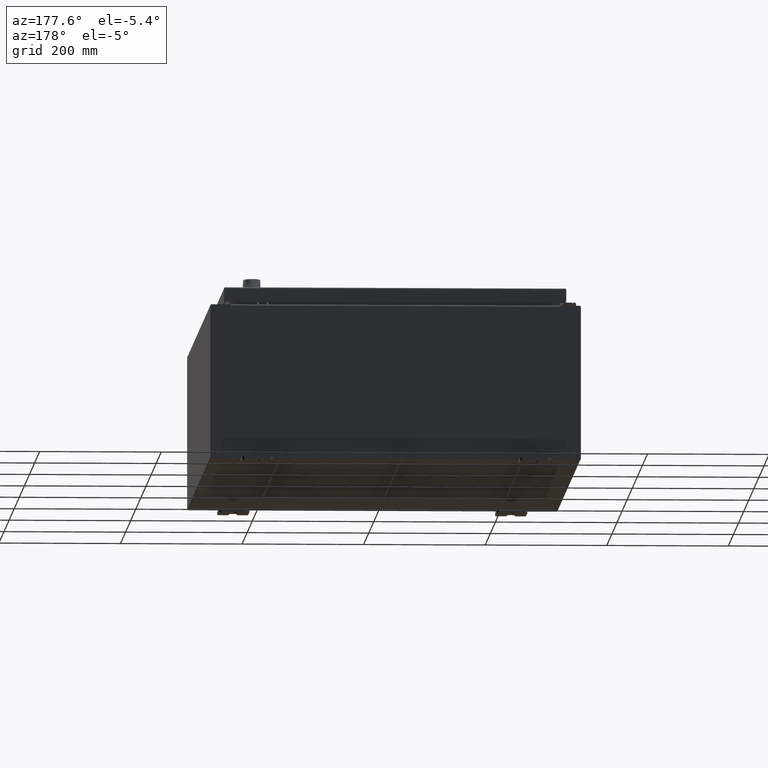
[diagram: clean part render]
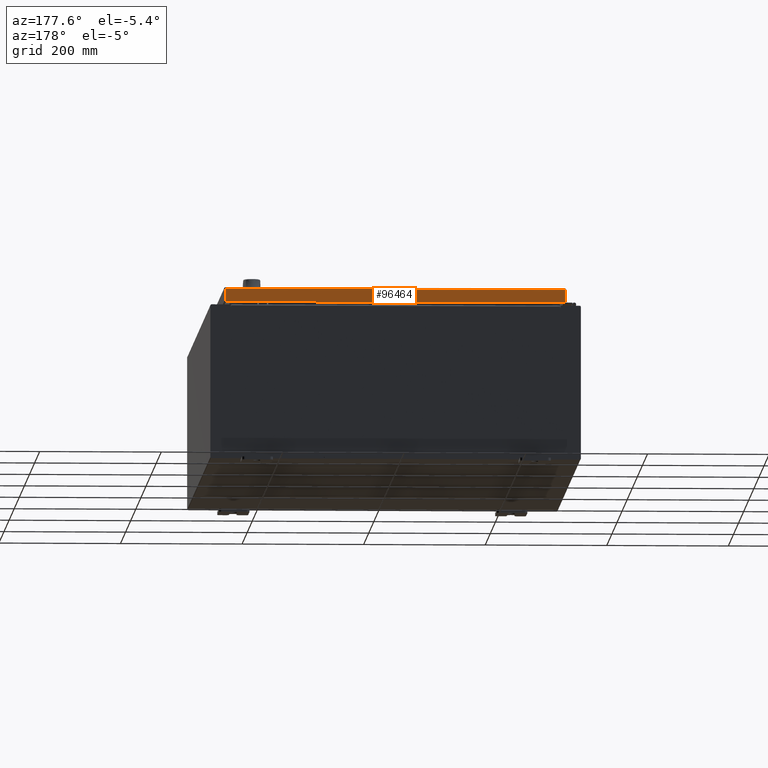
[diagram: same view with one face highlighted and labeled with its STEP entity id]
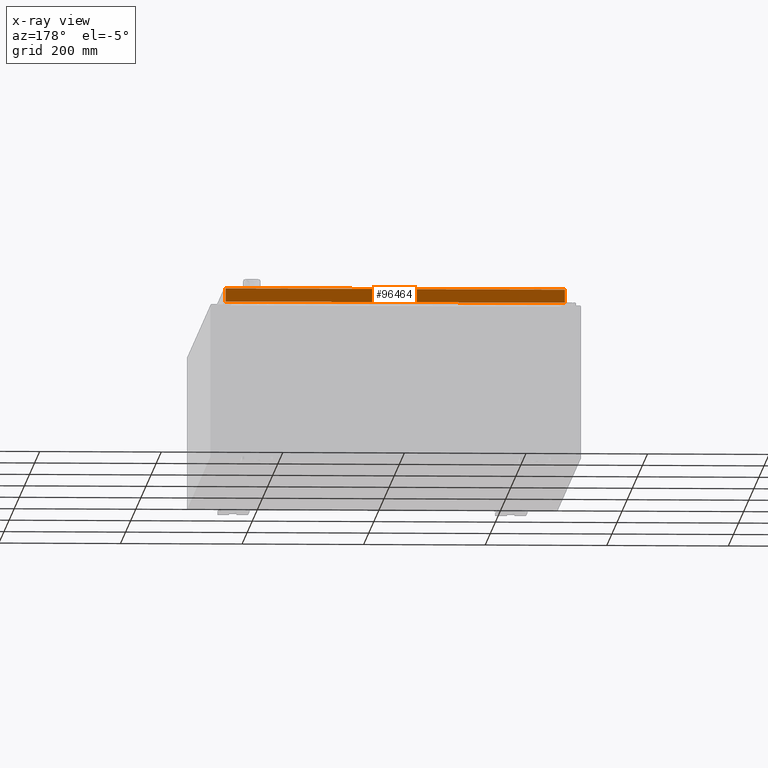
[diagram: x-ray of the same camera — body ghosted, the highlighted face saturated]
A machine part, auxiliary view. The second image highlights one B-rep face of the part: STEP entity #96464.
The next image is the same camera in x-ray: the body ghosted, the highlighted face saturated — about 0% of this face is hidden behind the body in this view.
In plain terms, the highlighted planar face has unit normal (0, -1, -0).
Its self-contained STEP definition (entity closure, byte-faithful):
#1524 = VERTEX_POINT ( 'NONE', #23886 ) ;
#4689 = VECTOR ( 'NONE', #33058, 39.37007874015748100 ) ;
#20199 = LINE ( 'NONE', #98527, #114333 ) ;
#22997 = ORIENTED_EDGE ( 'NONE', *, *, #47722, .F. ) ;
#23886 = CARTESIAN_POINT ( 'NONE',  ( -10.98915786437626900, 17.09400000000000800, -0.08770000000000008300 ) ) ;
#24113 = PLANE ( 'NONE',  #31308 ) ;
#30142 = EDGE_CURVE ( 'NONE', #56739, #81375, #73807, .T. ) ;
#31308 = AXIS2_PLACEMENT_3D ( 'NONE', #51220, #98571, #89920 ) ;
#31789 = ORIENTED_EDGE ( 'NONE', *, *, #91081, .F. ) ;
#31989 = CARTESIAN_POINT ( 'NONE',  ( -10.98915786437627200, 17.09400000000000800, -0.9377000000000025300 ) ) ;
#32900 = EDGE_LOOP ( 'NONE', ( #22997, #121225, #31789, #90151 ) ) ;
#33058 = DIRECTION ( 'NONE',  ( 0.0000000000000000000, 2.532419924601858200E-015, -1.000000000000000000 ) ) ;
#36488 = VECTOR ( 'NONE', #95974, 39.37007874015748100 ) ;
#40845 = LINE ( 'NONE', #77183, #87952 ) ;
#42138 = DIRECTION ( 'NONE',  ( -1.000000000000000000, -3.122488847327583000E-031, -7.817847125977018100E-046 ) ) ;
#47722 = EDGE_CURVE ( 'NONE', #56739, #1524, #20199, .T. ) ;
#51220 = CARTESIAN_POINT ( 'NONE',  ( -5.337582435621772200E-030, 17.09400000000000800, 4.354999984715576500E-014 ) ) ;
#56739 = VERTEX_POINT ( 'NONE', #114189 ) ;
#70855 = CARTESIAN_POINT ( 'NONE',  ( 10.98915786437626500, 17.09400000000000800, 4.354999984715576500E-014 ) ) ;
#73807 = LINE ( 'NONE', #70855, #4689 ) ;
#77183 = CARTESIAN_POINT ( 'NONE',  ( -11.07800000000000300, 17.09400000000000800, -0.9377000000000025300 ) ) ;
#81375 = VERTEX_POINT ( 'NONE', #85214 ) ;
#85214 = CARTESIAN_POINT ( 'NONE',  ( 10.98915786437626500, 17.09400000000000800, -0.9376999999999997600 ) ) ;
#86488 = CARTESIAN_POINT ( 'NONE',  ( -10.98915786437627200, 17.09400000000000800, -0.07469999999999980800 ) ) ;
#86557 = LINE ( 'NONE', #86488, #36488 ) ;
#87952 = VECTOR ( 'NONE', #115048, 39.37007874015748100 ) ;
#88980 = VERTEX_POINT ( 'NONE', #31989 ) ;
#89920 = DIRECTION ( 'NONE',  ( 0.0000000000000000000, 2.532419924601858200E-015, -1.000000000000000000 ) ) ;
#90151 = ORIENTED_EDGE ( 'NONE', *, *, #116100, .F. ) ;
#91081 = EDGE_CURVE ( 'NONE', #88980, #81375, #40845, .T. ) ;
#95974 = DIRECTION ( 'NONE',  ( -0.0000000000000000000, 2.532419924601858200E-015, -1.000000000000000000 ) ) ;
#96464 = ADVANCED_FACE ( 'NONE', ( #121262 ), #24113, .F. ) ;
#98527 = CARTESIAN_POINT ( 'NONE',  ( -11.07800000000000300, 17.09400000000000800, -0.08770000000000008300 ) ) ;
#98571 = DIRECTION ( 'NONE',  ( 3.122488847327582500E-031, -1.000000000000000000, -2.532419924601858200E-015 ) ) ;
#114189 = CARTESIAN_POINT ( 'NONE',  ( 10.98915786437626500, 17.09400000000000800, -0.08770000000000008300 ) ) ;
#114333 = VECTOR ( 'NONE', #42138, 39.37007874015748100 ) ;
#115048 = DIRECTION ( 'NONE',  ( 1.000000000000000000, -4.379057701015054300E-047, 1.233005954894504400E-016 ) ) ;
#116100 = EDGE_CURVE ( 'NONE', #1524, #88980, #86557, .T. ) ;
#121225 = ORIENTED_EDGE ( 'NONE', *, *, #30142, .T. ) ;
#121262 = FACE_OUTER_BOUND ( 'NONE', #32900, .T. ) ;